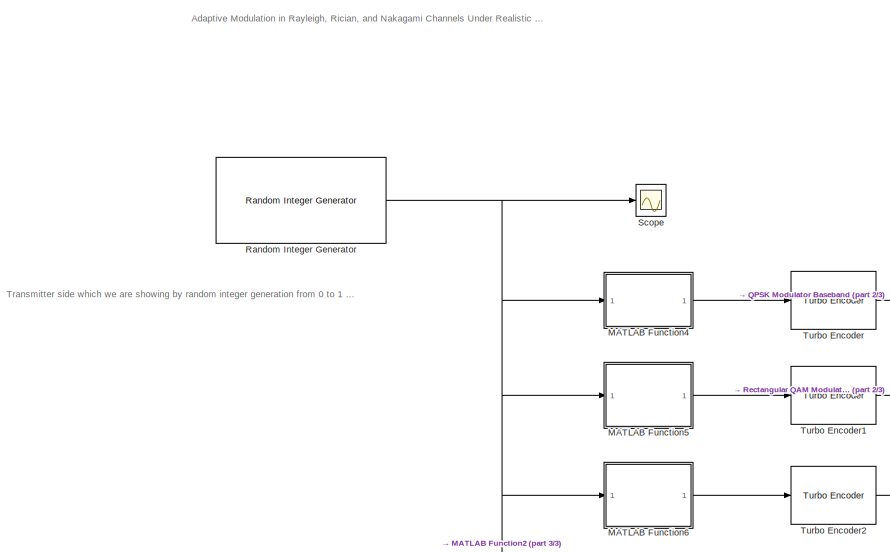
[diagram: root canvas - part 1/3, top left region]
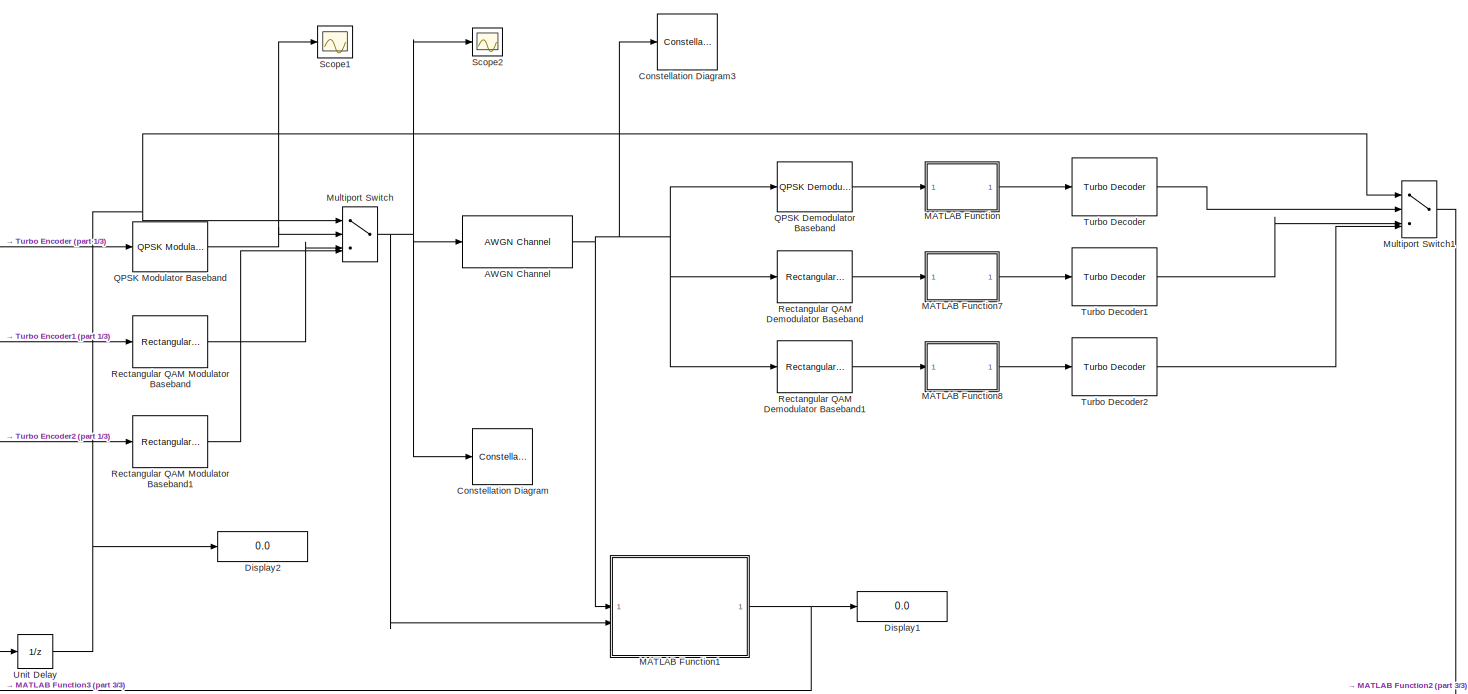
[diagram: root canvas - part 2/3, middle right region]
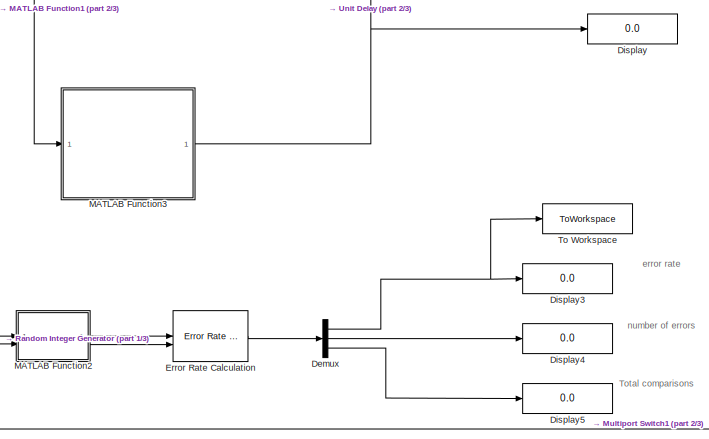
[diagram: root canvas - part 3/3, bottom center region]
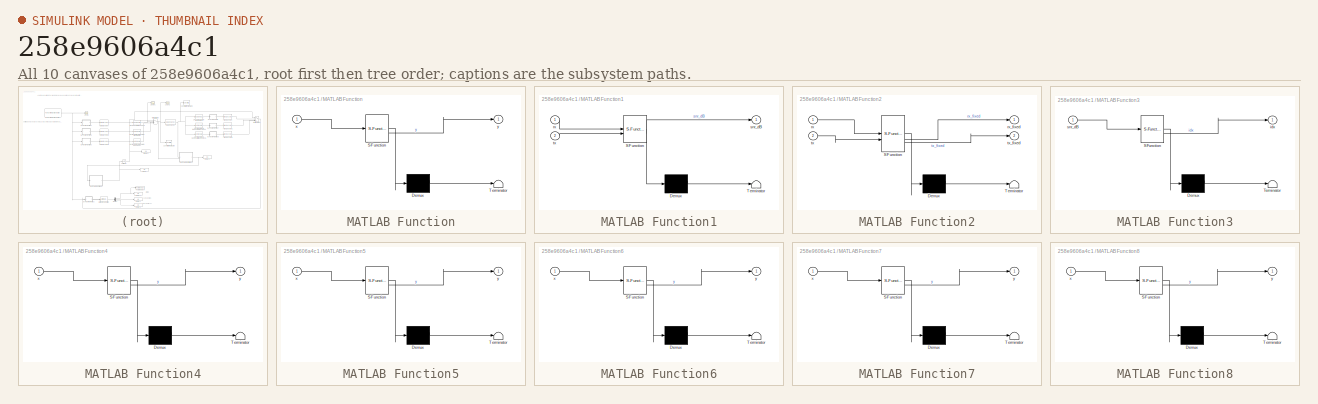
[diagram: thumbnail index - all 10 canvases of the model, root first then tree order]
MODEL slx_258e9606a4c1
KIND model
CONFIG AbsTol = auto
CONFIG EnableMultiTasking = off
CONFIG FixedStep = 0.1
CONFIG MaxStep = auto
CONFIG MinStep = auto
CONFIG RelTol = 1e-3
CONFIG SampleTimeConstraint = Unconstrained
CONFIG SolverName = FixedStepAuto
CONFIG StartTime = 0.0
CONFIG StopTime = 5
BLOCK [Reference] AWGN Channel  REF=commchan3/AWGN
Channel
  SourceBlock = commchan3/AWGN\nChannel
  SourceType = AWGN Channel
BLOCK [ConstellationDiagram] Constellation Diagram
  GraphicalSettings = {"GraphicalSettings":{"Style":{}}}
  ScopeFrameLocation = window
  Visible = on
  WasSavedAsWebScope = on
  WindowPosition = [216.000000,65.000000,1440.000000,700.000000,]
BLOCK [ConstellationDiagram] Constellation Diagram3
  GraphicalSettings = {"GraphicalSettings":{"Style":{}}}
  ScopeFrameLocation = window
  Visible = on
  WasSavedAsWebScope = on
  WindowPosition = [116.000000,96.000000,1440.000000,701.000000,]
BLOCK [Demux] Demux
  Outputs = 3
BLOCK [Display] Display
  Decimation = 1
BLOCK [Display] Display1
  Decimation = 1
BLOCK [Display] Display2
  Decimation = 1
BLOCK [Display] Display3
  Decimation = 1
BLOCK [Display] Display4
  Decimation = 1
BLOCK [Display] Display5
  Decimation = 1
BLOCK [Reference] Error Rate Calculation  REF=commsink2/Error Rate
Calculation
  LibrarySourceBlock = commhdlsink/Error Rate\nCalculation
  SourceBlock = commsink2/Error Rate\nCalculation
  SourceType = Error Rate Calculation
BLOCK [SubSystem] MATLAB Function
  ErrorFcn = Stateflow.Translate.translate
  PermitHierarchicalResolution = ExplicitOnly
  SFBlockType = MATLAB Function
  TreatAsAtomicUnit = on
BLOCK [Demux] MATLAB Function/ Demux 
  Outputs = 1
BLOCK [S-Function] MATLAB Function/ SFunction 
  EnableBusSupport = on
  FunctionName = sf_sfun
  PortCounts = [1 2]
  SFcnIsStateOwnerBlock = off
  SFunctionDeploymentMode = off
  Tag = Stateflow S-Function 2
BLOCK [Terminator] MATLAB Function/ Terminator 
BLOCK [Inport] MATLAB Function/x
BLOCK [Outport] MATLAB Function/y
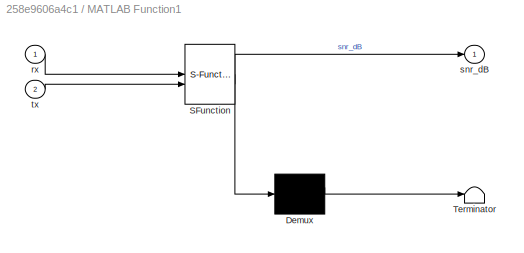
BLOCK [SubSystem] MATLAB Function1
  ErrorFcn = Stateflow.Translate.translate
  PermitHierarchicalResolution = ExplicitOnly
  SFBlockType = MATLAB Function
  TreatAsAtomicUnit = on
BLOCK [Demux] MATLAB Function1/ Demux 
  Outputs = 1
BLOCK [S-Function] MATLAB Function1/ SFunction 
  EnableBusSupport = on
  FunctionName = sf_sfun
  PortCounts = [2 2]
  SFcnIsStateOwnerBlock = off
  SFunctionDeploymentMode = off
  Tag = Stateflow S-Function 1
BLOCK [Terminator] MATLAB Function1/ Terminator 
BLOCK [Inport] MATLAB Function1/rx
BLOCK [Outport] MATLAB Function1/snr_dB
BLOCK [Inport] MATLAB Function1/tx
  Port = 2
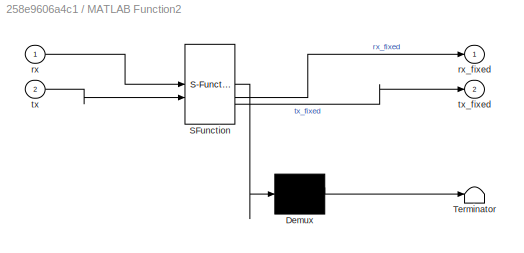
BLOCK [SubSystem] MATLAB Function2
  ErrorFcn = Stateflow.Translate.translate
  PermitHierarchicalResolution = ExplicitOnly
  SFBlockType = MATLAB Function
  TreatAsAtomicUnit = on
BLOCK [Demux] MATLAB Function2/ Demux 
  Outputs = 1
BLOCK [S-Function] MATLAB Function2/ SFunction 
  EnableBusSupport = on
  FunctionName = sf_sfun
  PortCounts = [2 3]
  SFcnIsStateOwnerBlock = off
  SFunctionDeploymentMode = off
  Tag = Stateflow S-Function 3
BLOCK [Terminator] MATLAB Function2/ Terminator 
BLOCK [Inport] MATLAB Function2/rx
BLOCK [Outport] MATLAB Function2/rx_fixed
BLOCK [Inport] MATLAB Function2/tx
  Port = 2
BLOCK [Outport] MATLAB Function2/tx_fixed
  Port = 2
BLOCK [SubSystem] MATLAB Function3
  ErrorFcn = Stateflow.Translate.translate
  PermitHierarchicalResolution = ExplicitOnly
  SFBlockType = MATLAB Function
  TreatAsAtomicUnit = on
BLOCK [Demux] MATLAB Function3/ Demux 
  Outputs = 1
BLOCK [S-Function] MATLAB Function3/ SFunction 
  EnableBusSupport = on
  FunctionName = sf_sfun
  PortCounts = [1 2]
  SFcnIsStateOwnerBlock = off
  SFunctionDeploymentMode = off
  Tag = Stateflow S-Function 4
BLOCK [Terminator] MATLAB Function3/ Terminator 
BLOCK [Outport] MATLAB Function3/idx
BLOCK [Inport] MATLAB Function3/snr_dB
BLOCK [SubSystem] MATLAB Function4
  ErrorFcn = Stateflow.Translate.translate
  PermitHierarchicalResolution = ExplicitOnly
  SFBlockType = MATLAB Function
  TreatAsAtomicUnit = on
BLOCK [Demux] MATLAB Function4/ Demux 
  Outputs = 1
BLOCK [S-Function] MATLAB Function4/ SFunction 
  EnableBusSupport = on
  FunctionName = sf_sfun
  PortCounts = [1 2]
  SFcnIsStateOwnerBlock = off
  SFunctionDeploymentMode = off
  Tag = Stateflow S-Function 5
BLOCK [Terminator] MATLAB Function4/ Terminator 
BLOCK [Inport] MATLAB Function4/x
BLOCK [Outport] MATLAB Function4/y
BLOCK [SubSystem] MATLAB Function5
  ErrorFcn = Stateflow.Translate.translate
  PermitHierarchicalResolution = ExplicitOnly
  SFBlockType = MATLAB Function
  TreatAsAtomicUnit = on
BLOCK [Demux] MATLAB Function5/ Demux 
  Outputs = 1
BLOCK [S-Function] MATLAB Function5/ SFunction 
  EnableBusSupport = on
  FunctionName = sf_sfun
  PortCounts = [1 2]
  SFcnIsStateOwnerBlock = off
  SFunctionDeploymentMode = off
  Tag = Stateflow S-Function 6
BLOCK [Terminator] MATLAB Function5/ Terminator 
BLOCK [Inport] MATLAB Function5/x
BLOCK [Outport] MATLAB Function5/y
BLOCK [SubSystem] MATLAB Function6
  ErrorFcn = Stateflow.Translate.translate
  PermitHierarchicalResolution = ExplicitOnly
  SFBlockType = MATLAB Function
  TreatAsAtomicUnit = on
BLOCK [Demux] MATLAB Function6/ Demux 
  Outputs = 1
BLOCK [S-Function] MATLAB Function6/ SFunction 
  EnableBusSupport = on
  FunctionName = sf_sfun
  PortCounts = [1 2]
  SFcnIsStateOwnerBlock = off
  SFunctionDeploymentMode = off
  Tag = Stateflow S-Function 7
BLOCK [Terminator] MATLAB Function6/ Terminator 
BLOCK [Inport] MATLAB Function6/x
BLOCK [Outport] MATLAB Function6/y
BLOCK [SubSystem] MATLAB Function7
  ErrorFcn = Stateflow.Translate.translate
  PermitHierarchicalResolution = ExplicitOnly
  SFBlockType = MATLAB Function
  TreatAsAtomicUnit = on
BLOCK [Demux] MATLAB Function7/ Demux 
  Outputs = 1
BLOCK [S-Function] MATLAB Function7/ SFunction 
  EnableBusSupport = on
  FunctionName = sf_sfun
  PortCounts = [1 2]
  SFcnIsStateOwnerBlock = off
  SFunctionDeploymentMode = off
  Tag = Stateflow S-Function 8
BLOCK [Terminator] MATLAB Function7/ Terminator 
BLOCK [Inport] MATLAB Function7/x
BLOCK [Outport] MATLAB Function7/y
BLOCK [SubSystem] MATLAB Function8
  ErrorFcn = Stateflow.Translate.translate
  PermitHierarchicalResolution = ExplicitOnly
  SFBlockType = MATLAB Function
  TreatAsAtomicUnit = on
BLOCK [Demux] MATLAB Function8/ Demux 
  Outputs = 1
BLOCK [S-Function] MATLAB Function8/ SFunction 
  EnableBusSupport = on
  FunctionName = sf_sfun
  PortCounts = [1 2]
  SFcnIsStateOwnerBlock = off
  SFunctionDeploymentMode = off
  Tag = Stateflow S-Function 9
BLOCK [Terminator] MATLAB Function8/ Terminator 
BLOCK [Inport] MATLAB Function8/x
BLOCK [Outport] MATLAB Function8/y
BLOCK [MultiPortSwitch] Multiport Switch
  AllowDiffInputSizes = on
  DataPortOrder = Zero-based contiguous
  InputSameDT = off
  SaturateOnIntegerOverflow = off
  zeroidx = on
BLOCK [MultiPortSwitch] Multiport Switch1
  AllowDiffInputSizes = on
  DataPortOrder = Zero-based contiguous
  InputSameDT = off
  OutDataTypeStr = double
  SaturateOnIntegerOverflow = off
  zeroidx = on
BLOCK [Reference] QPSK Demodulator Baseband  REF=commdigbbndpm3/QPSK
Demodulator
Baseband
  SourceBlock = commdigbbndpm3/QPSK\nDemodulator\nBaseband
  SourceType = QPSK Demodulator Baseband
BLOCK [Reference] QPSK Modulator Baseband  REF=commdigbbndpm3/QPSK
Modulator
Baseband
  SourceBlock = commdigbbndpm3/QPSK\nModulator\nBaseband
  SourceType = QPSK Modulator Baseband
BLOCK [Reference] Random Integer Generator  REF=commrandsrc3/Random Integer
Generator
  SourceBlock = commrandsrc3/Random Integer\nGenerator
  SourceType = Random Integer Generator
BLOCK [Reference] Rectangular QAM Demodulator Baseband  REF=commdigbbndam3/Rectangular QAM
Demodulator
Baseband
  LibrarySourceBlock = commhdldigbbndam/Rectangular QAM\nDemodulator\nBaseband
  SourceBlock = commdigbbndam3/Rectangular QAM\nDemodulator\nBaseband
  SourceType = Rectangular QAM Demodulator Baseband
BLOCK [Reference] Rectangular QAM Demodulator Baseband1  REF=commdigbbndam3/Rectangular QAM
Demodulator
Baseband
  LibrarySourceBlock = commhdldigbbndam/Rectangular QAM\nDemodulator\nBaseband
  SourceBlock = commdigbbndam3/Rectangular QAM\nDemodulator\nBaseband
  SourceType = Rectangular QAM Demodulator Baseband
BLOCK [Reference] Rectangular QAM Modulator Baseband  REF=commdigbbndam3/Rectangular QAM
Modulator
Baseband
  SourceBlock = commdigbbndam3/Rectangular QAM\nModulator\nBaseband
  SourceType = Rectangular QAM Modulator Baseband
BLOCK [Reference] Rectangular QAM Modulator Baseband1  REF=commdigbbndam3/Rectangular QAM
Modulator
Baseband
  SourceBlock = commdigbbndam3/Rectangular QAM\nModulator\nBaseband
  SourceType = Rectangular QAM Modulator Baseband
BLOCK [Scope] Scope
  Floating = off
  NumInputPorts = 1
  ScopeSpecificationString = Simulink.scopes.TimeScopeBlockCfg('CurrentConfiguration', extmgr.ConfigurationSet(extmgr.Configuration('Core','General UI',true),extmgr.Configuration('Core','Source UI',true),extmgr.Configuration('Sources','WiredSimulink',true,'DataLoggingVariableName','ScopeData1'),extmgr.Configuration('Visuals','Time Domain',true,'SerializedDisplays',{struct('MinYLimReal','-0.125','MaxYLimReal','1.125','YLabelRe...<+17247ch>
BLOCK [Scope] Scope1
  Floating = off
  NumInputPorts = 1
  ScopeSpecificationString = Simulink.scopes.TimeScopeBlockCfg('CurrentConfiguration', extmgr.ConfigurationSet(extmgr.Configuration('Core','General UI',true),extmgr.Configuration('Core','Source UI',true),extmgr.Configuration('Sources','WiredSimulink',true,'DataLoggingVariableName','ScopeData2'),extmgr.Configuration('Visuals','Time Domain',true),extmgr.Configuration('Tools','Plot Navigation',true),extmgr.Configuration('Tools',...<+40ch>
BLOCK [Scope] Scope2
  Floating = off
  NumInputPorts = 1
  ScopeSpecificationString = Simulink.scopes.TimeScopeBlockCfg('CurrentConfiguration', extmgr.ConfigurationSet(extmgr.Configuration('Core','General UI',true),extmgr.Configuration('Core','Source UI',true),extmgr.Configuration('Sources','WiredSimulink',true,'DataLoggingVariableName','ScopeData3'),extmgr.Configuration('Visuals','Time Domain',true,'SerializedDisplays',{struct('MinYLimReal','-3.17446','MaxYLimReal','3.40491','YLab...<+16153ch>
BLOCK [ToWorkspace] To Workspace
  FixptAsFi = on
  MaxDataPoints = inf
  SampleTime = -1
  VariableName = err
BLOCK [Reference] Turbo Decoder  REF=commcnvcod2/Turbo Decoder
  SourceBlock = commcnvcod2/Turbo Decoder
  SourceType = Turbo Decoder
BLOCK [Reference] Turbo Decoder1  REF=commcnvcod2/Turbo Decoder
  SourceBlock = commcnvcod2/Turbo Decoder
  SourceType = Turbo Decoder
BLOCK [Reference] Turbo Decoder2  REF=commcnvcod2/Turbo Decoder
  SourceBlock = commcnvcod2/Turbo Decoder
  SourceType = Turbo Decoder
BLOCK [Reference] Turbo Encoder  REF=commcnvcod2/Turbo Encoder
  SourceBlock = commcnvcod2/Turbo Encoder
  SourceType = Turbo Encoder
BLOCK [Reference] Turbo Encoder1  REF=commcnvcod2/Turbo Encoder
  SourceBlock = commcnvcod2/Turbo Encoder
  SourceType = Turbo Encoder
BLOCK [Reference] Turbo Encoder2  REF=commcnvcod2/Turbo Encoder
  SourceBlock = commcnvcod2/Turbo Encoder
  SourceType = Turbo Encoder
BLOCK [UnitDelay] Unit Delay
  HasFrameUpgradeWarning = on
  InitialCondition = 1
  SampleTime = 2
ANNOTATION (root): Total comparisons
ANNOTATION (root): number of errors
ANNOTATION (root): Transmitter side which we are showing by random integer generation from 0 to 1 which then gets into the modulation process
ANNOTATION (root): error rate
ANNOTATION (root): Adaptive Modulation in Rayleigh, Rician, and Nakagami Channels Under Realistic Propagation Effects: MATLAB-Based KPI Analysis
NET AWGN Channel:1 -> Constellation Diagram3:1, MATLAB Function1:1, QPSK Demodulator Baseband:1, Rectangular QAM Demodulator Baseband1:1, Rectangular QAM Demodulator Baseband:1
NET Demux:1 -> Display3:1, To Workspace:1
LINE Demux:2 -> Display4:1
LINE Demux:3 -> Display5:1
LINE Error Rate Calculation:1 -> Demux:1
NET MATLAB Function1:1 -> Display1:1, MATLAB Function3:1
LINE MATLAB Function2:1 -> Error Rate Calculation:1
LINE MATLAB Function2:2 -> Error Rate Calculation:2
NET MATLAB Function3:1 -> Display:1, Unit Delay:1
LINE MATLAB Function4:1 -> Turbo Encoder:1
LINE MATLAB Function5:1 -> Turbo Encoder1:1
LINE MATLAB Function6:1 -> Turbo Encoder2:1
LINE MATLAB Function7:1 -> Turbo Decoder1:1
LINE MATLAB Function8:1 -> Turbo Decoder2:1
LINE MATLAB Function:1 -> Turbo Decoder:1
LINE Multiport Switch1:1 -> MATLAB Function2:1
NET Multiport Switch:1 -> AWGN Channel:1, Constellation Diagram:1, MATLAB Function1:2, Scope2:1
LINE QPSK Demodulator Baseband:1 -> MATLAB Function:1
NET QPSK Modulator Baseband:1 -> Multiport Switch:2, Scope1:1
NET Random Integer Generator:1 -> MATLAB Function2:2, MATLAB Function4:1, MATLAB Function5:1, MATLAB Function6:1, Scope:1
LINE Rectangular QAM Demodulator Baseband1:1 -> MATLAB Function8:1
LINE Rectangular QAM Demodulator Baseband:1 -> MATLAB Function7:1
LINE Rectangular QAM Modulator Baseband1:1 -> Multiport Switch:4
LINE Rectangular QAM Modulator Baseband:1 -> Multiport Switch:3
LINE Turbo Decoder1:1 -> Multiport Switch1:3
LINE Turbo Decoder2:1 -> Multiport Switch1:4
LINE Turbo Decoder:1 -> Multiport Switch1:2
LINE Turbo Encoder1:1 -> Rectangular QAM Modulator Baseband:1
LINE Turbo Encoder2:1 -> Rectangular QAM Modulator Baseband1:1
LINE Turbo Encoder:1 -> QPSK Modulator Baseband:1
NET Unit Delay:1 -> Display2:1, Multiport Switch1:1, Multiport Switch:1
note: NET lines group one-source signal fan-out (src -> all destinations, sorted); 1:1 wires keep LINE
CHART MATLAB Function states=1 transitions=1
  STATE_LABEL 'eML_blk_kernel()'
  STATE_LABEL 'SCRIPT:\nfunction y = my_wrapper(x)\n%#codegen\ny = zeros(204, 1);  % match encoder output length\nN = min(length(x), 204);\ny(1:N) = x(1:N);\n'
CHART MATLAB Function2 states=1 transitions=1
  STATE_LABEL 'eML_blk_kernel()'
  STATE_LABEL 'SCRIPT:\nfunction [rx_fixed, tx_fixed] = fixTo64(rx, tx)\n%#codegen\n% Ensure both outputs are always exactly 64×1\n\n  % Pre‐allocate 64×1 outputs\n  rx_fixed = zeros(64,1);\n  tx_fixed = zeros(64,1);\n\n  % How many samples we really have\n  Lr = numel(rx);\n  Lt = numel(tx);\n\n  % Truncate or pad rx\n  if Lr >= 64\n    rx_fixed = rx(1:64);\n  else\n    rx_fixed(1:Lr) = rx;\n  end\n\n  % Truncate or pad tx\n  if Lt...<+74ch>'
CHART MATLAB Function3 states=1 transitions=1
  STATE_LABEL 'eML_blk_kernel()'
  STATE_LABEL 'SCRIPT:\nfunction idx = amc_controller(snr_dB)\n%#codegen\n\n% Define SNR thresholds for modulation + coding selection\nif snr_dB < 7\n    idx = 0;  % QPSK\nelseif snr_dB < 15\n    idx = 1;  % 16-QAM\nelse\n    idx = 2;  % 64-QAM\nend\n'
CHART MATLAB Function4 states=1 transitions=1
  STATE_LABEL 'eML_blk_kernel()'
  STATE_LABEL 'SCRIPT:\nfunction y = truncatePad64(x)\n%#codegen\nN = length(x);\nfixedLen = 64;\n\n% Allocate a [64 x 1] output\ny = zeros(fixedLen,1);\n\n% If input has more than 64 bits, truncate\nif N >= fixedLen\n    y(1:fixedLen) = x(1:fixedLen);\nelse\n    % If input is shorter, copy + zero pad\n    y(1:N) = x(1:N);\n    % The rest remain zeros\nend\n'  <repeated x3 — deduplicated; at blocks: MATLAB Function4, MATLAB Function5, MATLAB Function6>
CHART MATLAB Function5 states=1 transitions=1
  STATE_LABEL 'eML_blk_kernel()'
CHART MATLAB Function6 states=1 transitions=1
  STATE_LABEL 'eML_blk_kernel()'
CHART MATLAB Function7 states=1 transitions=1
  STATE_LABEL 'eML_blk_kernel()'
  STATE_LABEL 'SCRIPT:\nfunction y = my_wrapper(x)\n%#codegen\ny = zeros(204, 1);  % match encoder output length\nN = min(length(x), 204);\ny(1:N) = x(1:N);\n'
CHART MATLAB Function8 states=1 transitions=1
  STATE_LABEL 'eML_blk_kernel()'
  STATE_LABEL 'SCRIPT:\nfunction y = my_wrapper(x)\n%#codegen\ny = zeros(204, 1);  % match encoder output length\nN = min(length(x), 204);\ny(1:N) = x(1:N);\n'
CHART MATLAB Function1 states=1 transitions=1
  STATE_LABEL 'eML_blk_kernel()'
  STATE_LABEL 'SCRIPT:\nfunction snr_dB = snr_estimator(rx, tx)\n%#codegen\n    noise     = rx - tx;          % estimation of the noise\n    P_noise   = norm(noise)^2;    % total noise energy\n    P_signal  = norm(tx)^2;       % total signal energy\n    snr_dB    = 10 * log10(P_signal / P_noise);\nend\n'
CHART  states=0 transitions=0
CHART  states=0 transitions=0
CHART  states=0 transitions=0
CHART  states=0 transitions=0
CHART  states=0 transitions=0
CHART  states=0 transitions=0
CHART  states=0 transitions=0
CHART  states=0 transitions=0
CHART  states=0 transitions=0
